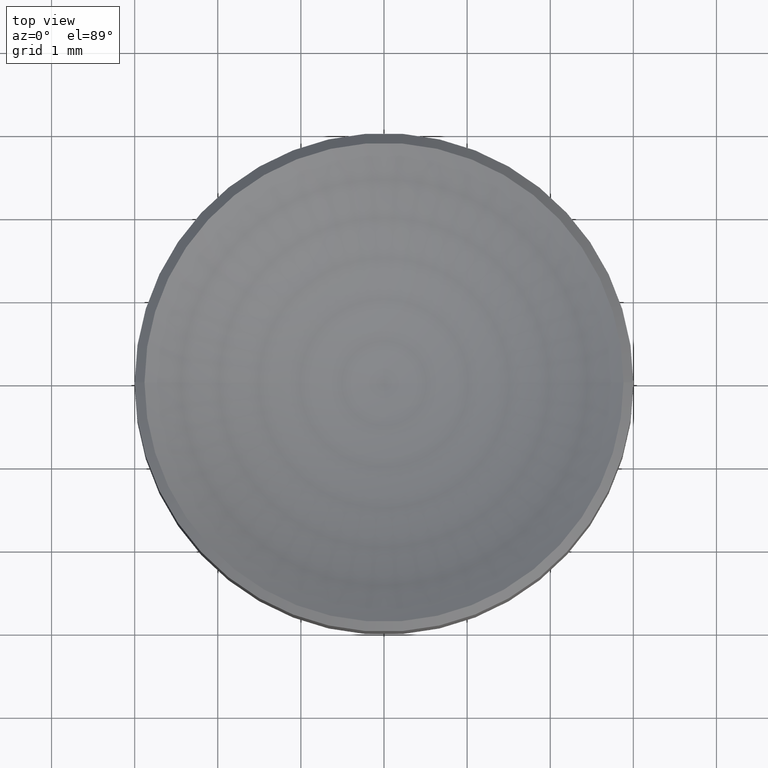
[diagram: clean part render]
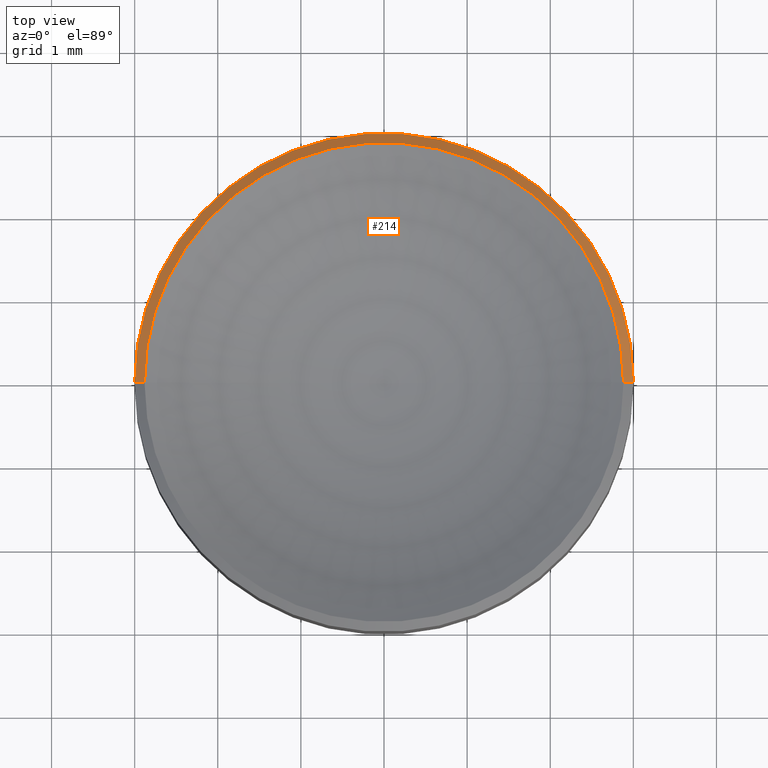
[diagram: same view with one face highlighted and labeled with its STEP entity id]
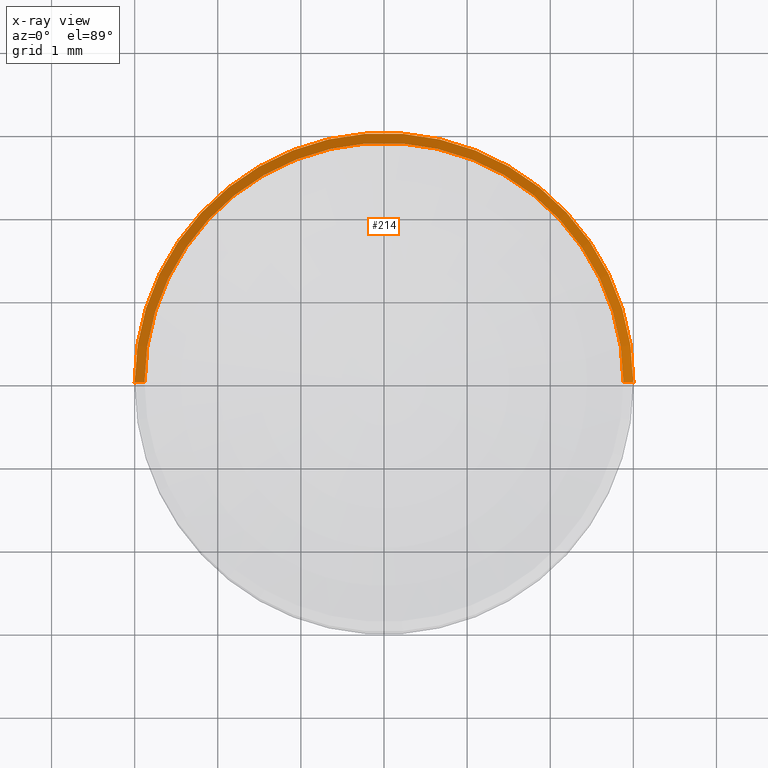
[diagram: x-ray of the same camera — body ghosted, the highlighted face saturated]
A machine part, top view. The second image highlights one B-rep face of the part: STEP entity #214.
The next image is the same camera in x-ray: the body ghosted, the highlighted face saturated — about 0% of this face is hidden behind the body in this view.
In plain terms, the highlighted conical surface has half-angle 45 deg.
Its self-contained STEP definition (entity closure, byte-faithful):
#2 = ORIENTED_EDGE ( 'NONE', *, *, #121, .F. ) ;
#3 = EDGE_LOOP ( 'NONE', ( #32, #45, #189, #2 ) ) ;
#12 = CARTESIAN_POINT ( 'NONE',  ( 0.000000000000000000, 0.000000000000000000, 2.378202045785372309 ) ) ;
#30 = CARTESIAN_POINT ( 'NONE',  ( -3.000000000000000000, 3.673940397442059868E-16, 2.260000000000000675 ) ) ;
#32 = ORIENTED_EDGE ( 'NONE', *, *, #108, .F. ) ;
#33 = VERTEX_POINT ( 'NONE', #30 ) ;
#39 = DIRECTION ( 'NONE',  ( -0.000000000000000000, -0.000000000000000000, 1.000000000000000000 ) ) ;
#40 = AXIS2_PLACEMENT_3D ( 'NONE', #12, #134, #165 ) ;
#45 = ORIENTED_EDGE ( 'NONE', *, *, #59, .T. ) ;
#51 = DIRECTION ( 'NONE',  ( 0.000000000000000000, 0.000000000000000000, -1.000000000000000000 ) ) ;
#59 = EDGE_CURVE ( 'NONE', #124, #61, #243, .T. ) ;
#61 = VERTEX_POINT ( 'NONE', #172 ) ;
#74 = CARTESIAN_POINT ( 'NONE',  ( 2.881797954214630142, 0.000000000000000000, 2.378202045785374974 ) ) ;
#76 = CIRCLE ( 'NONE', #245, 2.881797954214628810 ) ;
#81 = FACE_OUTER_BOUND ( 'NONE', #3, .T. ) ;
#83 = EDGE_CURVE ( 'NONE', #33, #61, #106, .T. ) ;
#95 = DIRECTION ( 'NONE',  ( 0.7071067811865450192, 8.659560562354900811E-17, -0.7071067811865500152 ) ) ;
#98 = VERTEX_POINT ( 'NONE', #219 ) ;
#100 = CARTESIAN_POINT ( 'NONE',  ( 0.000000000000000000, 0.000000000000000000, 2.378202045785374974 ) ) ;
#103 = VECTOR ( 'NONE', #260, 1000.000000000000000 ) ;
#106 = CIRCLE ( 'NONE', #217, 3.000000000000000000 ) ;
#108 = EDGE_CURVE ( 'NONE', #124, #98, #76, .T. ) ;
#119 = LINE ( 'NONE', #175, #103 ) ;
#120 = CARTESIAN_POINT ( 'NONE',  ( 2.881797954214629254, 3.529184640418335740E-16, 2.378202045785372309 ) ) ;
#121 = EDGE_CURVE ( 'NONE', #98, #33, #119, .T. ) ;
#124 = VERTEX_POINT ( 'NONE', #74 ) ;
#134 = DIRECTION ( 'NONE',  ( 0.000000000000000000, 0.000000000000000000, -1.000000000000000000 ) ) ;
#137 = DIRECTION ( 'NONE',  ( -1.000000000000000000, 0.000000000000000000, 0.000000000000000000 ) ) ;
#155 = CARTESIAN_POINT ( 'NONE',  ( 0.000000000000000000, 0.000000000000000000, 2.260000000000000675 ) ) ;
#156 = DIRECTION ( 'NONE',  ( 1.000000000000000000, 0.000000000000000000, 0.000000000000000000 ) ) ;
#165 = DIRECTION ( 'NONE',  ( -1.000000000000000000, 0.000000000000000000, 0.000000000000000000 ) ) ;
#172 = CARTESIAN_POINT ( 'NONE',  ( 3.000000000000000000, 0.000000000000000000, 2.260000000000000675 ) ) ;
#175 = CARTESIAN_POINT ( 'NONE',  ( -2.881797954214629254, 0.000000000000000000, 2.378202045785372309 ) ) ;
#189 = ORIENTED_EDGE ( 'NONE', *, *, #83, .F. ) ;
#214 = ADVANCED_FACE ( 'NONE', ( #81 ), #261, .T. ) ;
#217 = AXIS2_PLACEMENT_3D ( 'NONE', #155, #51, #137 ) ;
#219 = CARTESIAN_POINT ( 'NONE',  ( -2.881797954214630142, 3.529184640418337712E-16, 2.378202045785374974 ) ) ;
#220 = VECTOR ( 'NONE', #95, 1000.000000000000000 ) ;
#243 = LINE ( 'NONE', #120, #220 ) ;
#245 = AXIS2_PLACEMENT_3D ( 'NONE', #100, #39, #156 ) ;
#260 = DIRECTION ( 'NONE',  ( -0.7071067811865450192, 0.000000000000000000, -0.7071067811865500152 ) ) ;
#261 = CONICAL_SURFACE ( 'NONE', #40, 2.881797954214629254, 0.7853981633974447263 ) ;